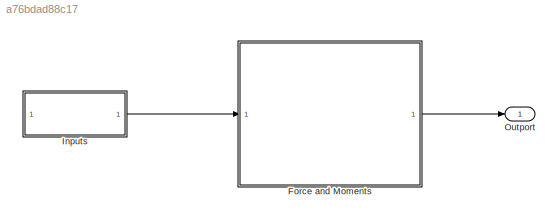
MODEL slx_a76bdad88c17
KIND model
CONFIG AbsTol = 1e-3
CONFIG EnableMultiTasking = off
CONFIG FixedStep = auto
CONFIG MaxStep = auto
CONFIG MinStep = auto
CONFIG RelTol = 1e-3
CONFIG SampleTimeConstraint = Unconstrained
CONFIG SolverName = VariableStepAuto
CONFIG StartTime = 0.0
CONFIG StopTime = 10.0
WORKSPACE source: external: MAT-File  (data not in archive)
BLOCK [SubSystem] Force and Moments
  ReferencedSubsystem = AirframePowertrain
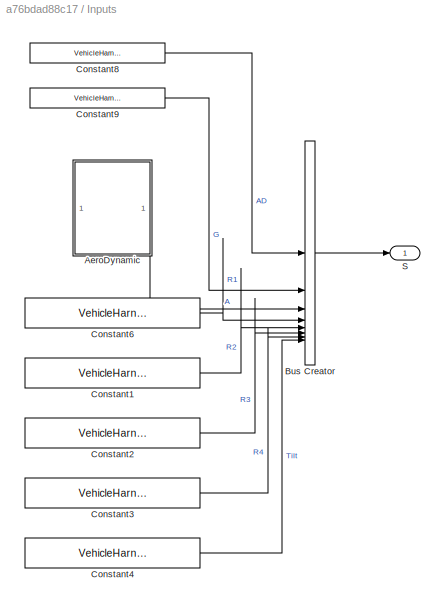
BLOCK [SubSystem] Inputs
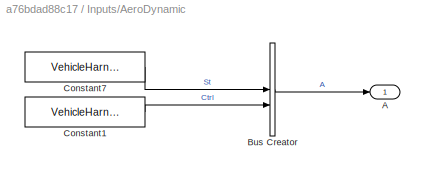
BLOCK [SubSystem] Inputs/AeroDynamic
BLOCK [Outport] Inputs/AeroDynamic/A
BLOCK [BusCreator] Inputs/AeroDynamic/Bus Creator
  DisplayOption = bar
  InheritFromInputs = on
  Inputs = 2
BLOCK [Constant] Inputs/AeroDynamic/Constant1
  OutDataTypeStr = Bus: Vehicle_A_Ctrl
  Value = VehicleHarn.A.Ctrl
BLOCK [Constant] Inputs/AeroDynamic/Constant7
  OutDataTypeStr = Bus: Vehicle_A_St
  Value = VehicleHarn.A.St
BLOCK [BusCreator] Inputs/Bus Creator
  DisplayOption = bar
  InheritFromInputs = on
  Inputs = 8
BLOCK [Constant] Inputs/Constant1
  OutDataTypeStr = Bus: Vehicle_R2
  Value = VehicleHarn.R2
BLOCK [Constant] Inputs/Constant2
  OutDataTypeStr = Bus: Vehicle_R3
  Value = VehicleHarn.R3
BLOCK [Constant] Inputs/Constant3
  OutDataTypeStr = Bus: Vehicle_R4
  Value = VehicleHarn.R4
BLOCK [Constant] Inputs/Constant4
  OutDataTypeStr = Bus: Vehicle_Tilt
  Value = VehicleHarn.Tilt
BLOCK [Constant] Inputs/Constant6
  OutDataTypeStr = Bus: Vehicle_R1
  Value = VehicleHarn.R1
BLOCK [Constant] Inputs/Constant8
  OutDataTypeStr = Bus: Vehicle_AD
  Value = VehicleHarn.AD
BLOCK [Constant] Inputs/Constant9
  OutDataTypeStr = Bus: Vehicle_G
  Value = VehicleHarn.G
BLOCK [Outport] Inputs/S
BLOCK [Outport] Outport
LINE Force and Moments:1 -> Outport:1
LINE Inputs/AeroDynamic/Bus Creator:1 -> Inputs/AeroDynamic/A:1
LINE Inputs/AeroDynamic/Constant1:1 -> Inputs/AeroDynamic/Bus Creator:2
LINE Inputs/AeroDynamic/Constant7:1 -> Inputs/AeroDynamic/Bus Creator:1
LINE Inputs/AeroDynamic:1 -> Inputs/Bus Creator:3
LINE Inputs/Bus Creator:1 -> Inputs/S:1
LINE Inputs/Constant1:1 -> Inputs/Bus Creator:5
LINE Inputs/Constant2:1 -> Inputs/Bus Creator:6
LINE Inputs/Constant3:1 -> Inputs/Bus Creator:7
LINE Inputs/Constant4:1 -> Inputs/Bus Creator:8
LINE Inputs/Constant6:1 -> Inputs/Bus Creator:4
LINE Inputs/Constant8:1 -> Inputs/Bus Creator:1
LINE Inputs/Constant9:1 -> Inputs/Bus Creator:2
LINE Inputs:1 -> Force and Moments:1
